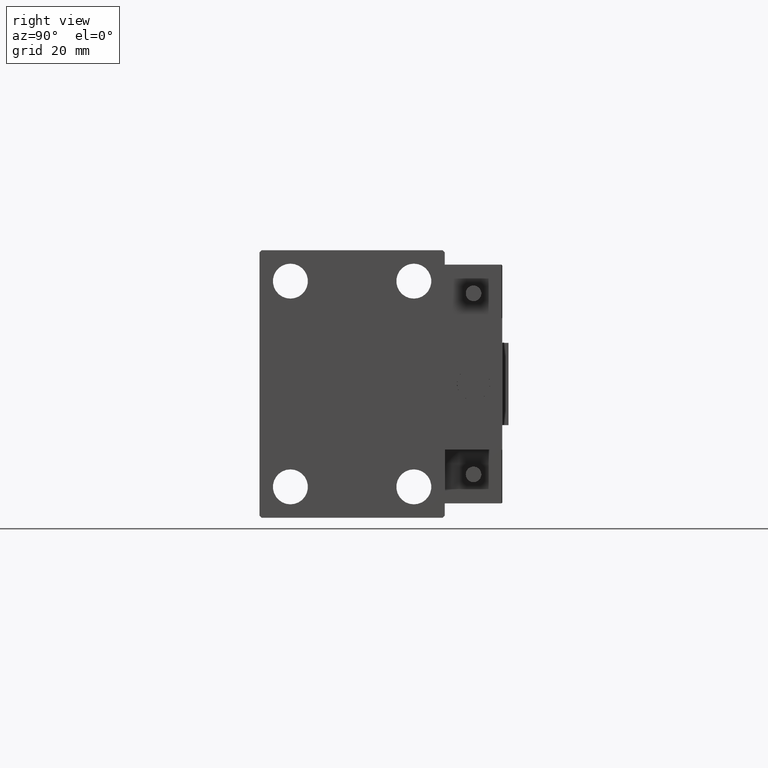
[diagram: clean part render]
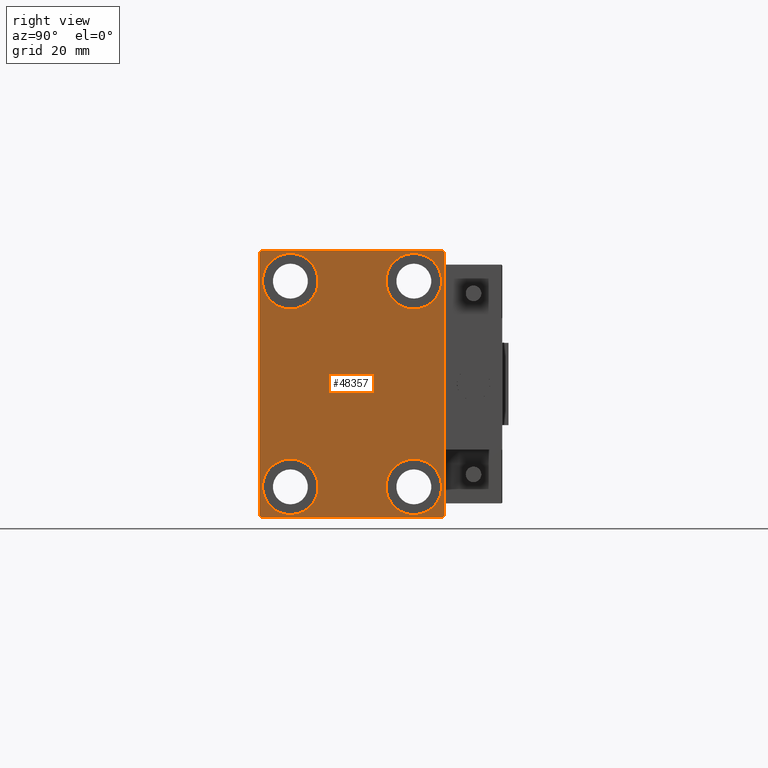
[diagram: same view with one face highlighted and labeled with its STEP entity id]
A machine part, right view. The second image highlights one B-rep face of the part: STEP entity #48357.
In plain terms, the highlighted planar face has unit normal (1, 0, 0).
Its self-contained STEP definition (entity closure, byte-faithful):
#50 = CARTESIAN_POINT ( 'NONE',  ( 75.00000000000000000, -14.99999999999999645, 31.75000000000000000 ) ) ;
#422 = CARTESIAN_POINT ( 'NONE',  ( 75.00000000000000000, -22.00000000000000711, -32.50000000000000711 ) ) ;
#423 = CARTESIAN_POINT ( 'NONE',  ( 75.00000000000000000, -15.00000000000000355, -25.00000000000000000 ) ) ;
#709 = VERTEX_POINT ( 'NONE', #45020 ) ;
#751 = VECTOR ( 'NONE', #33929, 1000.000000000000114 ) ;
#1655 = VERTEX_POINT ( 'NONE', #422 ) ;
#1711 = CIRCLE ( 'NONE', #42692, 6.749999999999999112 ) ;
#2004 = ORIENTED_EDGE ( 'NONE', *, *, #34668, .T. ) ;
#2155 = CARTESIAN_POINT ( 'NONE',  ( 75.00000000000000000, -14.99999999999999645, 25.00000000000000000 ) ) ;
#2533 = EDGE_LOOP ( 'NONE', ( #25561, #36495 ) ) ;
#2645 = DIRECTION ( 'NONE',  ( 1.000000000000000000, 0.000000000000000000, 0.000000000000000000 ) ) ;
#2899 = FACE_BOUND ( 'NONE', #50057, .T. ) ;
#3092 = DIRECTION ( 'NONE',  ( 0.000000000000000000, 0.000000000000000000, 1.000000000000000000 ) ) ;
#3097 = ORIENTED_EDGE ( 'NONE', *, *, #30471, .T. ) ;
#3163 = AXIS2_PLACEMENT_3D ( 'NONE', #46792, #2645, #30599 ) ;
#3338 = CARTESIAN_POINT ( 'NONE',  ( 75.00000000000000000, -22.50000000000000711, -32.00000000000000711 ) ) ;
#4162 = VERTEX_POINT ( 'NONE', #6740 ) ;
#4241 = VERTEX_POINT ( 'NONE', #50403 ) ;
#4410 = EDGE_CURVE ( 'NONE', #26573, #29603, #11822, .T. ) ;
#4655 = LINE ( 'NONE', #35217, #31894 ) ;
#4781 = ORIENTED_EDGE ( 'NONE', *, *, #36752, .T. ) ;
#5126 = CARTESIAN_POINT ( 'NONE',  ( 75.00000000000000000, 15.00000000000000355, 25.00000000000000000 ) ) ;
#5307 = VERTEX_POINT ( 'NONE', #42149 ) ;
#6199 = CIRCLE ( 'NONE', #26739, 6.749999999999999112 ) ;
#6595 = CARTESIAN_POINT ( 'NONE',  ( 75.00000000000000000, 22.49999999999999289, 32.50000000000000000 ) ) ;
#6740 = CARTESIAN_POINT ( 'NONE',  ( 75.00000000000000000, 14.99999999999999645, -18.25000000000000355 ) ) ;
#6975 = PLANE ( 'NONE',  #3163 ) ;
#7116 = ORIENTED_EDGE ( 'NONE', *, *, #14247, .T. ) ;
#7186 = CARTESIAN_POINT ( 'NONE',  ( 75.00000000000000000, -22.50000000000000711, 32.49999999999999289 ) ) ;
#7356 = CARTESIAN_POINT ( 'NONE',  ( 75.00000000000000000, 27.25000000000000355, -27.25000000000000355 ) ) ;
#8651 = DIRECTION ( 'NONE',  ( 0.000000000000000000, -1.067522139062650425E-16, 1.000000000000000000 ) ) ;
#9007 = VERTEX_POINT ( 'NONE', #19757 ) ;
#9146 = EDGE_CURVE ( 'NONE', #9007, #17102, #14821, .T. ) ;
#9212 = LINE ( 'NONE', #40531, #35116 ) ;
#9271 = CARTESIAN_POINT ( 'NONE',  ( 75.00000000000000000, 14.99999999999999645, -25.00000000000000000 ) ) ;
#10445 = VERTEX_POINT ( 'NONE', #28103 ) ;
#10466 = AXIS2_PLACEMENT_3D ( 'NONE', #45186, #17978, #3092 ) ;
#10687 = VECTOR ( 'NONE', #42366, 1000.000000000000000 ) ;
#10778 = ORIENTED_EDGE ( 'NONE', *, *, #4410, .T. ) ;
#10808 = EDGE_CURVE ( 'NONE', #709, #4162, #43416, .T. ) ;
#10956 = AXIS2_PLACEMENT_3D ( 'NONE', #25330, #21978, #45352 ) ;
#11445 = AXIS2_PLACEMENT_3D ( 'NONE', #9271, #24940, #12894 ) ;
#11595 = CIRCLE ( 'NONE', #27166, 6.749999999999999112 ) ;
#11822 = LINE ( 'NONE', #7186, #10687 ) ;
#12177 = AXIS2_PLACEMENT_3D ( 'NONE', #5126, #20779, #13078 ) ;
#12184 = CIRCLE ( 'NONE', #12979, 6.749999999999999112 ) ;
#12894 = DIRECTION ( 'NONE',  ( 0.000000000000000000, 0.000000000000000000, 1.000000000000000000 ) ) ;
#12979 = AXIS2_PLACEMENT_3D ( 'NONE', #41634, #22899, #33949 ) ;
#13078 = DIRECTION ( 'NONE',  ( 0.000000000000000000, 0.000000000000000000, 1.000000000000000000 ) ) ;
#13207 = DIRECTION ( 'NONE',  ( -1.000000000000000000, -0.000000000000000000, -0.000000000000000000 ) ) ;
#13407 = CIRCLE ( 'NONE', #10956, 6.749999999999999112 ) ;
#14205 = ORIENTED_EDGE ( 'NONE', *, *, #20913, .T. ) ;
#14247 = EDGE_CURVE ( 'NONE', #5307, #25985, #23559, .T. ) ;
#14546 = EDGE_CURVE ( 'NONE', #27973, #50510, #1711, .T. ) ;
#14677 = CARTESIAN_POINT ( 'NONE',  ( 75.00000000000000000, -27.25000000000000711, 27.25000000000000711 ) ) ;
#14821 = LINE ( 'NONE', #6595, #36290 ) ;
#15409 = EDGE_CURVE ( 'NONE', #28847, #41588, #11595, .T. ) ;
#15910 = ORIENTED_EDGE ( 'NONE', *, *, #9146, .T. ) ;
#16788 = CARTESIAN_POINT ( 'NONE',  ( 75.00000000000000000, -22.00000000000000711, 32.49999999999999289 ) ) ;
#17102 = VERTEX_POINT ( 'NONE', #16788 ) ;
#17803 = DIRECTION ( 'NONE',  ( 0.000000000000000000, 0.000000000000000000, 1.000000000000000000 ) ) ;
#17978 = DIRECTION ( 'NONE',  ( -1.000000000000000000, -0.000000000000000000, -0.000000000000000000 ) ) ;
#18276 = DIRECTION ( 'NONE',  ( 0.000000000000000000, 1.000000000000000000, 0.000000000000000000 ) ) ;
#19757 = CARTESIAN_POINT ( 'NONE',  ( 75.00000000000000000, 22.00000000000000711, 32.50000000000000000 ) ) ;
#19976 = CARTESIAN_POINT ( 'NONE',  ( 75.00000000000000000, 22.50000000000000000, -32.50000000000000711 ) ) ;
#20606 = DIRECTION ( 'NONE',  ( 0.000000000000000000, 0.000000000000000000, 1.000000000000000000 ) ) ;
#20779 = DIRECTION ( 'NONE',  ( -1.000000000000000000, -0.000000000000000000, -0.000000000000000000 ) ) ;
#20913 = EDGE_CURVE ( 'NONE', #4162, #709, #13407, .T. ) ;
#21547 = CARTESIAN_POINT ( 'NONE',  ( 75.00000000000000000, -15.00000000000000355, -18.25000000000000355 ) ) ;
#21978 = DIRECTION ( 'NONE',  ( -1.000000000000000000, -0.000000000000000000, -0.000000000000000000 ) ) ;
#22899 = DIRECTION ( 'NONE',  ( -1.000000000000000000, -0.000000000000000000, -0.000000000000000000 ) ) ;
#23559 = LINE ( 'NONE', #19976, #23844 ) ;
#23844 = VECTOR ( 'NONE', #8651, 1000.000000000000000 ) ;
#24209 = CARTESIAN_POINT ( 'NONE',  ( 75.00000000000000000, -15.00000000000000355, -25.00000000000000000 ) ) ;
#24258 = ORIENTED_EDGE ( 'NONE', *, *, #14546, .T. ) ;
#24703 = ORIENTED_EDGE ( 'NONE', *, *, #36906, .T. ) ;
#24849 = CARTESIAN_POINT ( 'NONE',  ( 75.00000000000000000, 21.99999999999998579, -32.50000000000000711 ) ) ;
#24940 = DIRECTION ( 'NONE',  ( -1.000000000000000000, -0.000000000000000000, -0.000000000000000000 ) ) ;
#25330 = CARTESIAN_POINT ( 'NONE',  ( 75.00000000000000000, 14.99999999999999645, -25.00000000000000000 ) ) ;
#25561 = ORIENTED_EDGE ( 'NONE', *, *, #48401, .T. ) ;
#25985 = VERTEX_POINT ( 'NONE', #45898 ) ;
#26573 = VERTEX_POINT ( 'NONE', #41137 ) ;
#26623 = DIRECTION ( 'NONE',  ( 0.000000000000000000, -1.000000000000000000, -1.541976423090495387E-16 ) ) ;
#26739 = AXIS2_PLACEMENT_3D ( 'NONE', #24209, #32413, #20606 ) ;
#27166 = AXIS2_PLACEMENT_3D ( 'NONE', #423, #44039, #28378 ) ;
#27637 = LINE ( 'NONE', #7356, #38846 ) ;
#27884 = EDGE_CURVE ( 'NONE', #1655, #47264, #38531, .T. ) ;
#27973 = VERTEX_POINT ( 'NONE', #50 ) ;
#28103 = CARTESIAN_POINT ( 'NONE',  ( 75.00000000000000000, 15.00000000000000355, 31.75000000000000000 ) ) ;
#28378 = DIRECTION ( 'NONE',  ( 0.000000000000000000, 0.000000000000000000, 1.000000000000000000 ) ) ;
#28555 = CIRCLE ( 'NONE', #12177, 6.749999999999999112 ) ;
#28847 = VERTEX_POINT ( 'NONE', #21547 ) ;
#29603 = VERTEX_POINT ( 'NONE', #3338 ) ;
#30471 = EDGE_CURVE ( 'NONE', #41588, #28847, #6199, .T. ) ;
#30599 = DIRECTION ( 'NONE',  ( 0.000000000000000000, 0.000000000000000000, -1.000000000000000000 ) ) ;
#31114 = FACE_BOUND ( 'NONE', #35865, .T. ) ;
#31654 = ORIENTED_EDGE ( 'NONE', *, *, #38236, .T. ) ;
#31894 = VECTOR ( 'NONE', #34960, 1000.000000000000114 ) ;
#32413 = DIRECTION ( 'NONE',  ( -1.000000000000000000, -0.000000000000000000, -0.000000000000000000 ) ) ;
#33635 = ORIENTED_EDGE ( 'NONE', *, *, #35829, .T. ) ;
#33922 = CARTESIAN_POINT ( 'NONE',  ( 75.00000000000000000, -22.50000000000000711, -32.50000000000000711 ) ) ;
#33929 = DIRECTION ( 'NONE',  ( 0.000000000000000000, -0.7071067811865474617, -0.7071067811865474617 ) ) ;
#33949 = DIRECTION ( 'NONE',  ( 0.000000000000000000, 0.000000000000000000, 1.000000000000000000 ) ) ;
#34668 = EDGE_CURVE ( 'NONE', #50510, #27973, #39171, .T. ) ;
#34960 = DIRECTION ( 'NONE',  ( -0.000000000000000000, 0.7071067811865474617, -0.7071067811865474617 ) ) ;
#35116 = VECTOR ( 'NONE', #36696, 999.9999999999998863 ) ;
#35217 = CARTESIAN_POINT ( 'NONE',  ( 75.00000000000000000, -27.25000000000000711, -27.25000000000000711 ) ) ;
#35500 = ORIENTED_EDGE ( 'NONE', *, *, #10808, .T. ) ;
#35827 = EDGE_CURVE ( 'NONE', #10445, #4241, #28555, .T. ) ;
#35829 = EDGE_CURVE ( 'NONE', #25985, #9007, #9212, .T. ) ;
#35865 = EDGE_LOOP ( 'NONE', ( #35500, #14205 ) ) ;
#36290 = VECTOR ( 'NONE', #26623, 1000.000000000000000 ) ;
#36495 = ORIENTED_EDGE ( 'NONE', *, *, #35827, .T. ) ;
#36696 = DIRECTION ( 'NONE',  ( -0.000000000000000000, -0.7071067811865525687, 0.7071067811865425767 ) ) ;
#36752 = EDGE_CURVE ( 'NONE', #17102, #26573, #37785, .T. ) ;
#36906 = EDGE_CURVE ( 'NONE', #29603, #1655, #4655, .T. ) ;
#37785 = LINE ( 'NONE', #14677, #751 ) ;
#38236 = EDGE_CURVE ( 'NONE', #47264, #5307, #27637, .T. ) ;
#38531 = LINE ( 'NONE', #33922, #43064 ) ;
#38680 = DIRECTION ( 'NONE',  ( -0.000000000000000000, 0.7071067811865474617, 0.7071067811865474617 ) ) ;
#38806 = FACE_BOUND ( 'NONE', #40872, .T. ) ;
#38846 = VECTOR ( 'NONE', #38680, 1000.000000000000114 ) ;
#38959 = CARTESIAN_POINT ( 'NONE',  ( 75.00000000000000000, -15.00000000000000355, -31.75000000000000000 ) ) ;
#39171 = CIRCLE ( 'NONE', #10466, 6.749999999999999112 ) ;
#40531 = CARTESIAN_POINT ( 'NONE',  ( 75.00000000000000000, 27.24999999999985079, 27.25000000000023093 ) ) ;
#40872 = EDGE_LOOP ( 'NONE', ( #3097, #46996 ) ) ;
#41137 = CARTESIAN_POINT ( 'NONE',  ( 75.00000000000000000, -22.50000000000000711, 32.00000000000000711 ) ) ;
#41588 = VERTEX_POINT ( 'NONE', #38959 ) ;
#41634 = CARTESIAN_POINT ( 'NONE',  ( 75.00000000000000000, 15.00000000000000355, 25.00000000000000000 ) ) ;
#42149 = CARTESIAN_POINT ( 'NONE',  ( 75.00000000000000000, 22.50000000000000000, -32.00000000000000711 ) ) ;
#42153 = FACE_OUTER_BOUND ( 'NONE', #46735, .T. ) ;
#42366 = DIRECTION ( 'NONE',  ( 0.000000000000000000, 0.000000000000000000, -1.000000000000000000 ) ) ;
#42692 = AXIS2_PLACEMENT_3D ( 'NONE', #2155, #13207, #17803 ) ;
#43064 = VECTOR ( 'NONE', #18276, 1000.000000000000000 ) ;
#43416 = CIRCLE ( 'NONE', #11445, 6.749999999999999112 ) ;
#43693 = ORIENTED_EDGE ( 'NONE', *, *, #27884, .T. ) ;
#44039 = DIRECTION ( 'NONE',  ( -1.000000000000000000, -0.000000000000000000, -0.000000000000000000 ) ) ;
#45020 = CARTESIAN_POINT ( 'NONE',  ( 75.00000000000000000, 14.99999999999999645, -31.75000000000000000 ) ) ;
#45186 = CARTESIAN_POINT ( 'NONE',  ( 75.00000000000000000, -14.99999999999999645, 25.00000000000000000 ) ) ;
#45352 = DIRECTION ( 'NONE',  ( 0.000000000000000000, 0.000000000000000000, 1.000000000000000000 ) ) ;
#45788 = CARTESIAN_POINT ( 'NONE',  ( 75.00000000000000000, -14.99999999999999645, 18.25000000000000355 ) ) ;
#45898 = CARTESIAN_POINT ( 'NONE',  ( 75.00000000000000000, 22.49999999999999289, 32.00000000000002132 ) ) ;
#46022 = FACE_BOUND ( 'NONE', #2533, .T. ) ;
#46735 = EDGE_LOOP ( 'NONE', ( #15910, #4781, #10778, #24703, #43693, #31654, #7116, #33635 ) ) ;
#46792 = CARTESIAN_POINT ( 'NONE',  ( 75.00000000000000000, 0.000000000000000000, 0.000000000000000000 ) ) ;
#46996 = ORIENTED_EDGE ( 'NONE', *, *, #15409, .T. ) ;
#47264 = VERTEX_POINT ( 'NONE', #24849 ) ;
#48357 = ADVANCED_FACE ( 'NONE', ( #31114, #2899, #46022, #38806, #42153 ), #6975, .T. ) ;
#48401 = EDGE_CURVE ( 'NONE', #4241, #10445, #12184, .T. ) ;
#50057 = EDGE_LOOP ( 'NONE', ( #2004, #24258 ) ) ;
#50403 = CARTESIAN_POINT ( 'NONE',  ( 75.00000000000000000, 15.00000000000000355, 18.25000000000000355 ) ) ;
#50510 = VERTEX_POINT ( 'NONE', #45788 ) ;